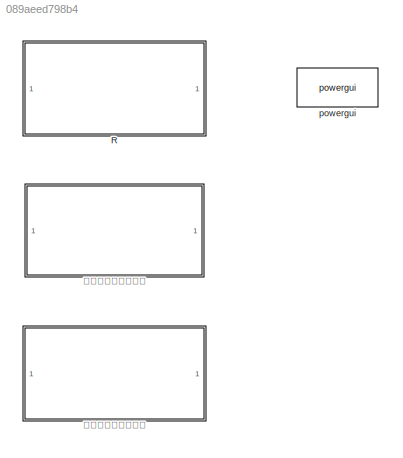
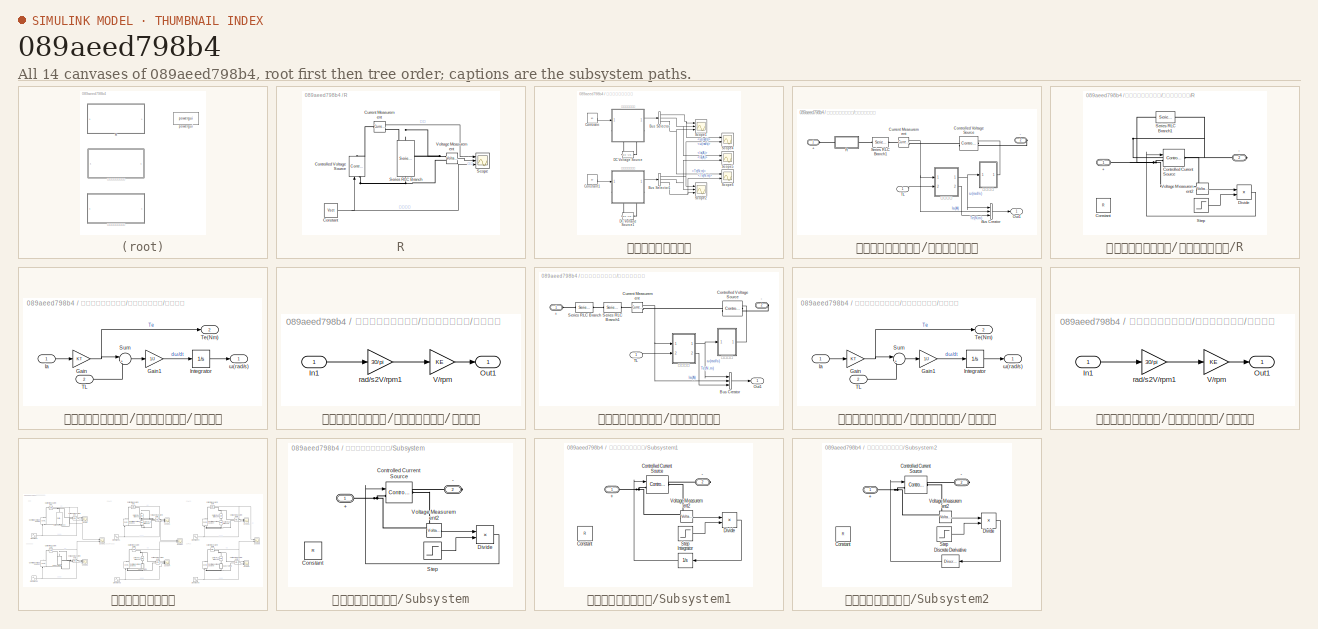
[diagram: thumbnail index - all 14 canvases of the model, root first then tree order]
MODEL slx_089aeed798b4
KIND model
CONFIG AbsTol = auto
CONFIG EnableMultiTasking = off
CONFIG FixedStep = auto
CONFIG MaxStep = 1e-6
CONFIG MinStep = auto
CONFIG RelTol = 1e-6
CONFIG SampleTimeConstraint = Unconstrained
CONFIG Solver = VariableStepAuto
CONFIG SolverName = VariableStepAuto
CONFIG StartTime = 0.0
CONFIG StopTime = 0.5
BLOCK [SubSystem] R
  Ports = []
  RequestExecContextInheritance = off
BLOCK [Constant] R/Constant
  Value = Vset
BLOCK [Reference] R/Controlled Voltage Source  REF=powerlib/Electrical
Sources/Controlled Voltage Source
  Ports = [1, 0, 0, 0, 0, 1, 1]
  SourceBlock = powerlib/Electrical\nSources/Controlled Voltage Source
  SourceProductBaseCode = PS
  SourceProductName = Simscape Power Systems
  SourceType = Controlled Voltage Source
BLOCK [Reference] R/Current Measurement  REF=powerlib/Measurements/Current Measurement
  Ports = [0, 1, 0, 0, 0, 1, 1]
  SourceBlock = powerlib/Measurements/Current Measurement
  SourceProductBaseCode = PS
  SourceProductName = Simscape Power Systems
  SourceType = Current Measurement
  UserDataPersistent = on
BLOCK [Scope] R/Scope
  Floating = off
  NumInputPorts = 3
  Ports = [3]
  ScopeSpecificationString = Simulink.scopes.TimeScopeBlockCfg('CurrentConfiguration', extmgr.ConfigurationSet(extmgr.Configuration('Core','General UI',true),extmgr.Configuration('Core','Source UI',true),extmgr.Configuration('Sources','WiredSimulink',true),extmgr.Configuration('Visuals','Time Domain',true,'SerializedDisplays',{struct('MinYLimReal','4.375','MaxYLimReal','10.625','YLabelReal','','MinYLimMag','4.375','MaxYLimMag...<+1347ch>
BLOCK [Reference] R/Series RLC Branch  REF=powerlib/Elements/Series RLC Branch
  Ports = [0, 0, 0, 0, 0, 1, 1]
  SourceBlock = powerlib/Elements/Series RLC Branch
  SourceProductBaseCode = PS
  SourceProductName = Simscape Power Systems
  SourceType = Series RLC Branch
BLOCK [Reference] R/Voltage Measurement  REF=powerlib/Measurements/Voltage Measurement
  Ports = [0, 1, 0, 0, 0, 2]
  SourceBlock = powerlib/Measurements/Voltage Measurement
  SourceProductBaseCode = PS
  SourceProductName = Simscape Power Systems
  SourceType = Voltage Measurement
  UserDataPersistent = on
BLOCK [Reference] powergui  REF=powerlib/powergui
  Ports = []
  Priority = 1
  SourceBlock = powerlib/powergui
  SourceProductBaseCode = PS
  SourceProductName = Simscape Power Systems
  SourceType = PSB option menu block
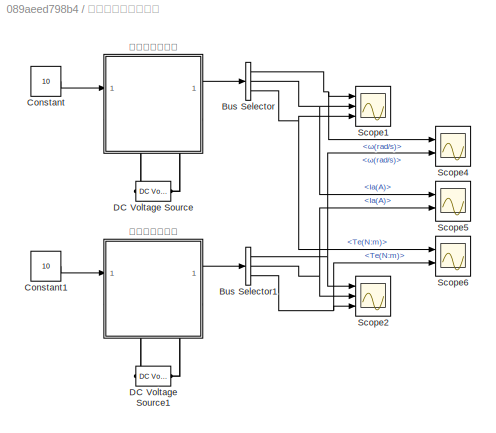
BLOCK [SubSystem] 变参数直流电机模型
  Ports = []
  RequestExecContextInheritance = off
BLOCK [BusSelector] 变参数直流电机模型/Bus Selector
  OutputAsBus = off
  OutputSignals = ω(rad/s),Ia(A),Te(N:m)
  Ports = [1, 3]
BLOCK [BusSelector] 变参数直流电机模型/Bus Selector1
  OutputAsBus = off
  OutputSignals = ω(rad/s),Ia(A),Te(N:m)
  Ports = [1, 3]
BLOCK [Constant] 变参数直流电机模型/Constant
  Value = 10
BLOCK [Constant] 变参数直流电机模型/Constant1
  Value = 10
BLOCK [Reference] 变参数直流电机模型/DC Voltage Source  REF=powerlib/Electrical
Sources/DC Voltage Source
  Ports = [0, 0, 0, 0, 0, 1, 1]
  SourceBlock = powerlib/Electrical\nSources/DC Voltage Source
  SourceProductBaseCode = PS
  SourceProductName = Simscape Power Systems
  SourceType = DC Voltage Source
BLOCK [Reference] 变参数直流电机模型/DC Voltage Source1  REF=powerlib/Electrical
Sources/DC Voltage Source
  Ports = [0, 0, 0, 0, 0, 1, 1]
  SourceBlock = powerlib/Electrical\nSources/DC Voltage Source
  SourceProductBaseCode = PS
  SourceProductName = Simscape Power Systems
  SourceType = DC Voltage Source
BLOCK [Scope] 变参数直流电机模型/Scope1
  Floating = off
  NumInputPorts = 3
  Ports = [3]
  ScopeSpecificationString = Simulink.scopes.TimeScopeBlockCfg('CurrentConfiguration', extmgr.ConfigurationSet(extmgr.Configuration('Core','General UI',true),extmgr.Configuration('Core','Source UI',true),extmgr.Configuration('Sources','WiredSimulink',true,'DataLoggingVariableName','ScopeData7'),extmgr.Configuration('Visuals','Time Domain',true,'SerializedDisplays',{struct('MinYLimReal','-0.08304','MaxYLimReal','0.74733','YLab...<+2814ch>
BLOCK [Scope] 变参数直流电机模型/Scope2
  Floating = off
  NumInputPorts = 3
  Ports = [3]
  ScopeSpecificationString = Simulink.scopes.TimeScopeBlockCfg('CurrentConfiguration', extmgr.ConfigurationSet(extmgr.Configuration('Core','General UI',true),extmgr.Configuration('Core','Source UI',true),extmgr.Configuration('Sources','WiredSimulink',true,'DataLoggingVariableName','ScopeData8'),extmgr.Configuration('Visuals','Time Domain',true,'SerializedDisplays',{struct('MinYLimReal','-0.08304','MaxYLimReal','0.74733','YLab...<+2814ch>
BLOCK [Scope] 变参数直流电机模型/Scope4
  Floating = off
  NumInputPorts = 2
  Ports = [2]
  ScopeSpecificationString = Simulink.scopes.TimeScopeBlockCfg('CurrentConfiguration', extmgr.ConfigurationSet(extmgr.Configuration('Core','General UI',true),extmgr.Configuration('Core','Source UI',true),extmgr.Configuration('Sources','WiredSimulink',true,'DataLoggingVariableName','ScopeData9'),extmgr.Configuration('Visuals','Time Domain',true,'SerializedDisplays',{struct('MinYLimReal','-0.07842','MaxYLimReal','0.70327','YLab...<+1503ch>
BLOCK [Scope] 变参数直流电机模型/Scope5
  Floating = off
  NumInputPorts = 2
  Ports = [2]
  ScopeSpecificationString = Simulink.scopes.TimeScopeBlockCfg('CurrentConfiguration', extmgr.ConfigurationSet(extmgr.Configuration('Core','General UI',true),extmgr.Configuration('Core','Source UI',true),extmgr.Configuration('Sources','WiredSimulink',true,'DataLoggingVariableName','ScopeData10'),extmgr.Configuration('Visuals','Time Domain',true,'SerializedDisplays',{struct('MinYLimReal','-0.79033','MaxYLimReal','13.42115','YL...<+1495ch>
BLOCK [Scope] 变参数直流电机模型/Scope6
  Floating = off
  NumInputPorts = 2
  Ports = [2]
  ScopeSpecificationString = Simulink.scopes.TimeScopeBlockCfg('CurrentConfiguration', extmgr.ConfigurationSet(extmgr.Configuration('Core','General UI',true),extmgr.Configuration('Core','Source UI',true),extmgr.Configuration('Sources','WiredSimulink',true,'DataLoggingVariableName','ScopeData11'),extmgr.Configuration('Visuals','Time Domain',true,'SerializedDisplays',{struct('MinYLimReal','-12.89768','MaxYLimReal','116.09974','...<+1512ch>
BLOCK [SubSystem] 变参数直流电机模型/变参数直流电机
  Ports = [1, 1, 0, 0, 0, 1, 1]
  RequestExecContextInheritance = off
BLOCK [PMIOPort] 变参数直流电机模型/变参数直流电机/+
  Side = Left
BLOCK [PMIOPort] 变参数直流电机模型/变参数直流电机/-
  Port = 2
  Side = Right
BLOCK [BusCreator] 变参数直流电机模型/变参数直流电机/Bus Creator
  DisplayOption = bar
  InheritFromInputs = on
  Inputs = 3
  Ports = [3, 1]
BLOCK [Reference] 变参数直流电机模型/变参数直流电机/Controlled Voltage Source  REF=powerlib/Electrical
Sources/Controlled Voltage Source
  Ports = [1, 0, 0, 0, 0, 1, 1]
  SourceBlock = powerlib/Electrical\nSources/Controlled Voltage Source
  SourceProductBaseCode = PS
  SourceProductName = Simscape Power Systems
  SourceType = Controlled Voltage Source
BLOCK [Reference] 变参数直流电机模型/变参数直流电机/Current Measurement  REF=powerlib/Measurements/Current Measurement
  Ports = [0, 1, 0, 0, 0, 1, 1]
  SourceBlock = powerlib/Measurements/Current Measurement
  SourceProductBaseCode = PS
  SourceProductName = Simscape Power Systems
  SourceType = Current Measurement
  UserDataPersistent = on
BLOCK [Outport] 变参数直流电机模型/变参数直流电机/Out1
  IconDisplay = Port number
BLOCK [SubSystem] 变参数直流电机模型/变参数直流电机/R
  Ports = [0, 0, 0, 0, 0, 1, 1]
  RequestExecContextInheritance = off
BLOCK [PMIOPort] 变参数直流电机模型/变参数直流电机/R/+
  Side = Left
BLOCK [PMIOPort] 变参数直流电机模型/变参数直流电机/R/-
  Port = 2
  Side = Right
BLOCK [Constant] 变参数直流电机模型/变参数直流电机/R/Constant
  Value = R
BLOCK [Reference] 变参数直流电机模型/变参数直流电机/R/Controlled Current Source  REF=powerlib/Electrical
Sources/Controlled Current Source
  Ports = [1, 0, 0, 0, 0, 1, 1]
  SourceBlock = powerlib/Electrical\nSources/Controlled Current Source
  SourceProductBaseCode = PS
  SourceProductName = Simscape Power Systems
  SourceType = Controlled Current Source
BLOCK [Product] 变参数直流电机模型/变参数直流电机/R/Divide
  InputSameDT = off
  Inputs = */
  OutDataTypeStr = Inherit: Inherit via internal rule
  Ports = [2, 1]
  RndMeth = Floor
  SaturateOnIntegerOverflow = off
BLOCK [Reference] 变参数直流电机模型/变参数直流电机/R/Series RLC Branch1  REF=powerlib/Elements/Series RLC Branch
  Ports = [0, 0, 0, 0, 0, 1, 1]
  SourceBlock = powerlib/Elements/Series RLC Branch
  SourceProductBaseCode = PS
  SourceProductName = Simscape Power Systems
  SourceType = Series RLC Branch
BLOCK [Step] 变参数直流电机模型/变参数直流电机/R/Step
  After = R*2
  Before = R
  SampleTime = 0
  Time = 0.2
BLOCK [Reference] 变参数直流电机模型/变参数直流电机/R/Voltage Measurement2  REF=powerlib/Measurements/Voltage Measurement
  Ports = [0, 1, 0, 0, 0, 2]
  SourceBlock = powerlib/Measurements/Voltage Measurement
  SourceProductBaseCode = PS
  SourceProductName = Simscape Power Systems
  SourceType = Voltage Measurement
  UserDataPersistent = on
BLOCK [Reference] 变参数直流电机模型/变参数直流电机/Series RLC Branch1  REF=powerlib/Elements/Series RLC Branch
  Ports = [0, 0, 0, 0, 0, 1, 1]
  SourceBlock = powerlib/Elements/Series RLC Branch
  SourceProductBaseCode = PS
  SourceProductName = Simscape Power Systems
  SourceType = Series RLC Branch
BLOCK [Inport] 变参数直流电机模型/变参数直流电机/TL
  IconDisplay = Port number
BLOCK [SubSystem] 变参数直流电机模型/变参数直流电机/机械方程
  Ports = [2, 2]
  RequestExecContextInheritance = off
BLOCK [Gain] 变参数直流电机模型/变参数直流电机/机械方程/Gain
  Gain = KT
  OutDataTypeStr = Inherit: Inherit via internal rule
  ParamDataTypeStr = Inherit: Inherit via internal rule
  SaturateOnIntegerOverflow = off
BLOCK [Gain] 变参数直流电机模型/变参数直流电机/机械方程/Gain1
  Gain = 1/J
  OutDataTypeStr = Inherit: Inherit via internal rule
  ParamDataTypeStr = Inherit: Inherit via internal rule
  SaturateOnIntegerOverflow = off
BLOCK [Inport] 变参数直流电机模型/变参数直流电机/机械方程/Ia
  IconDisplay = Port number
BLOCK [Integrator] 变参数直流电机模型/变参数直流电机/机械方程/Integrator
  Ports = [1, 1]
BLOCK [Sum] 变参数直流电机模型/变参数直流电机/机械方程/Sum
  IconShape = round
  InputSameDT = off
  Inputs = |+-
  OutDataTypeStr = Inherit: Inherit via internal rule
  Ports = [2, 1]
  SaturateOnIntegerOverflow = off
BLOCK [Inport] 变参数直流电机模型/变参数直流电机/机械方程/TL
  IconDisplay = Port number
  Port = 2
BLOCK [Outport] 变参数直流电机模型/变参数直流电机/机械方程/Te(Nm)
  IconDisplay = Port number
  Port = 2
BLOCK [Outport] 变参数直流电机模型/变参数直流电机/机械方程/ω(rad//s)
  IconDisplay = Port number
BLOCK [SubSystem] 变参数直流电机模型/变参数直流电机/电气方程
  Ports = [1, 1]
  RequestExecContextInheritance = off
BLOCK [Inport] 变参数直流电机模型/变参数直流电机/电气方程/In1
  IconDisplay = Port number
BLOCK [Outport] 变参数直流电机模型/变参数直流电机/电气方程/Out1
  IconDisplay = Port number
BLOCK [Gain] 变参数直流电机模型/变参数直流电机/电气方程/V//rpm
  Gain = KE
  OutDataTypeStr = Inherit: Inherit via internal rule
  ParamDataTypeStr = Inherit: Inherit via internal rule
  SaturateOnIntegerOverflow = off
BLOCK [Gain] 变参数直流电机模型/变参数直流电机/电气方程/rad//s2V//rpm1
  Gain = 30/pi
  OutDataTypeStr = Inherit: Inherit via internal rule
  ParamDataTypeStr = Inherit: Inherit via internal rule
  SaturateOnIntegerOverflow = off
BLOCK [SubSystem] 变参数直流电机模型/定参数直流电机
  Ports = [1, 1, 0, 0, 0, 1, 1]
  RequestExecContextInheritance = off
BLOCK [PMIOPort] 变参数直流电机模型/定参数直流电机/+
  Side = Left
BLOCK [PMIOPort] 变参数直流电机模型/定参数直流电机/-
  Port = 2
  Side = Right
BLOCK [BusCreator] 变参数直流电机模型/定参数直流电机/Bus Creator
  DisplayOption = bar
  InheritFromInputs = on
  Inputs = 3
  Ports = [3, 1]
BLOCK [Reference] 变参数直流电机模型/定参数直流电机/Controlled Voltage Source  REF=powerlib/Electrical
Sources/Controlled Voltage Source
  Ports = [1, 0, 0, 0, 0, 1, 1]
  SourceBlock = powerlib/Electrical\nSources/Controlled Voltage Source
  SourceProductBaseCode = PS
  SourceProductName = Simscape Power Systems
  SourceType = Controlled Voltage Source
BLOCK [Reference] 变参数直流电机模型/定参数直流电机/Current Measurement  REF=powerlib/Measurements/Current Measurement
  Ports = [0, 1, 0, 0, 0, 1, 1]
  SourceBlock = powerlib/Measurements/Current Measurement
  SourceProductBaseCode = PS
  SourceProductName = Simscape Power Systems
  SourceType = Current Measurement
  UserDataPersistent = on
BLOCK [Outport] 变参数直流电机模型/定参数直流电机/Out1
  IconDisplay = Port number
BLOCK [Reference] 变参数直流电机模型/定参数直流电机/Series RLC Branch  REF=powerlib/Elements/Series RLC Branch
  Ports = [0, 0, 0, 0, 0, 1, 1]
  SourceBlock = powerlib/Elements/Series RLC Branch
  SourceProductBaseCode = PS
  SourceProductName = Simscape Power Systems
  SourceType = Series RLC Branch
BLOCK [Reference] 变参数直流电机模型/定参数直流电机/Series RLC Branch1  REF=powerlib/Elements/Series RLC Branch
  Ports = [0, 0, 0, 0, 0, 1, 1]
  SourceBlock = powerlib/Elements/Series RLC Branch
  SourceProductBaseCode = PS
  SourceProductName = Simscape Power Systems
  SourceType = Series RLC Branch
BLOCK [Inport] 变参数直流电机模型/定参数直流电机/TL
  IconDisplay = Port number
BLOCK [SubSystem] 变参数直流电机模型/定参数直流电机/机械方程
  Ports = [2, 2]
  RequestExecContextInheritance = off
BLOCK [Gain] 变参数直流电机模型/定参数直流电机/机械方程/Gain
  Gain = KT
  OutDataTypeStr = Inherit: Inherit via internal rule
  ParamDataTypeStr = Inherit: Inherit via internal rule
  SaturateOnIntegerOverflow = off
BLOCK [Gain] 变参数直流电机模型/定参数直流电机/机械方程/Gain1
  Gain = 1/J
  OutDataTypeStr = Inherit: Inherit via internal rule
  ParamDataTypeStr = Inherit: Inherit via internal rule
  SaturateOnIntegerOverflow = off
BLOCK [Inport] 变参数直流电机模型/定参数直流电机/机械方程/Ia
  IconDisplay = Port number
BLOCK [Integrator] 变参数直流电机模型/定参数直流电机/机械方程/Integrator
  Ports = [1, 1]
BLOCK [Sum] 变参数直流电机模型/定参数直流电机/机械方程/Sum
  IconShape = round
  InputSameDT = off
  Inputs = |+-
  OutDataTypeStr = Inherit: Inherit via internal rule
  Ports = [2, 1]
  SaturateOnIntegerOverflow = off
BLOCK [Inport] 变参数直流电机模型/定参数直流电机/机械方程/TL
  IconDisplay = Port number
  Port = 2
BLOCK [Outport] 变参数直流电机模型/定参数直流电机/机械方程/Te(Nm)
  IconDisplay = Port number
  Port = 2
BLOCK [Outport] 变参数直流电机模型/定参数直流电机/机械方程/ω(rad//s)
  IconDisplay = Port number
BLOCK [SubSystem] 变参数直流电机模型/定参数直流电机/电气方程
  Ports = [1, 1]
  RequestExecContextInheritance = off
BLOCK [Inport] 变参数直流电机模型/定参数直流电机/电气方程/In1
  IconDisplay = Port number
BLOCK [Outport] 变参数直流电机模型/定参数直流电机/电气方程/Out1
  IconDisplay = Port number
BLOCK [Gain] 变参数直流电机模型/定参数直流电机/电气方程/V//rpm
  Gain = KE
  OutDataTypeStr = Inherit: Inherit via internal rule
  ParamDataTypeStr = Inherit: Inherit via internal rule
  SaturateOnIntegerOverflow = off
BLOCK [Gain] 变参数直流电机模型/定参数直流电机/电气方程/rad//s2V//rpm1
  Gain = 30/pi
  OutDataTypeStr = Inherit: Inherit via internal rule
  ParamDataTypeStr = Inherit: Inherit via internal rule
  SaturateOnIntegerOverflow = off
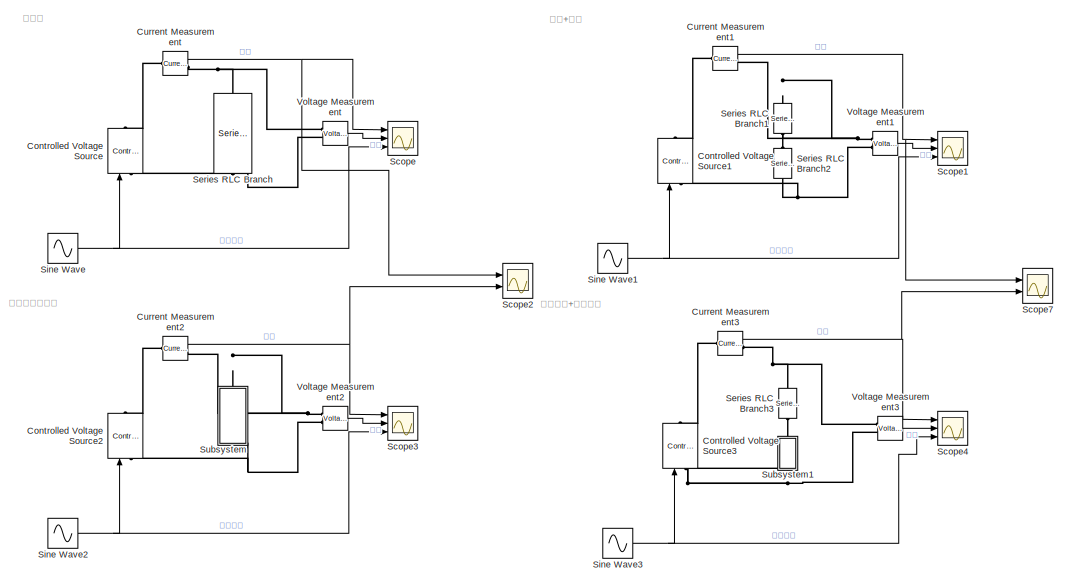
[diagram: 可变参电阻电感电容 - part 1/2, center side, full height]
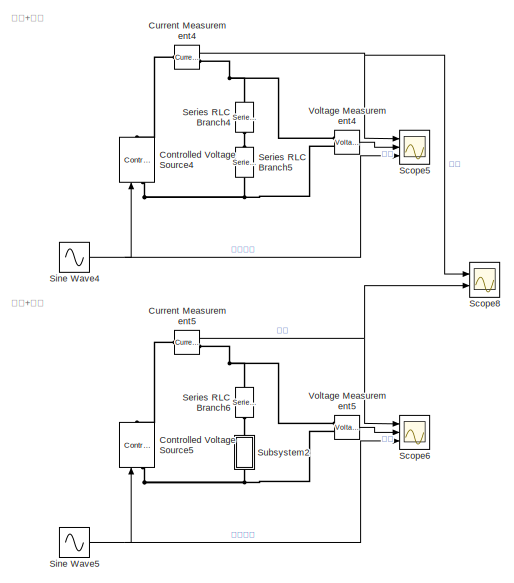
[diagram: 可变参电阻电感电容 - part 2/2, right side, full height]
BLOCK [SubSystem] 可变参电阻电感电容
  Ports = []
  RequestExecContextInheritance = off
BLOCK [Reference] 可变参电阻电感电容/Controlled Voltage Source  REF=powerlib/Electrical
Sources/Controlled Voltage Source
  Ports = [1, 0, 0, 0, 0, 1, 1]
  SourceBlock = powerlib/Electrical\nSources/Controlled Voltage Source
  SourceProductBaseCode = PS
  SourceProductName = Simscape Power Systems
  SourceType = Controlled Voltage Source
BLOCK [Reference] 可变参电阻电感电容/Controlled Voltage Source1  REF=powerlib/Electrical
Sources/Controlled Voltage Source
  Ports = [1, 0, 0, 0, 0, 1, 1]
  SourceBlock = powerlib/Electrical\nSources/Controlled Voltage Source
  SourceProductBaseCode = PS
  SourceProductName = Simscape Power Systems
  SourceType = Controlled Voltage Source
BLOCK [Reference] 可变参电阻电感电容/Controlled Voltage Source2  REF=powerlib/Electrical
Sources/Controlled Voltage Source
  Ports = [1, 0, 0, 0, 0, 1, 1]
  SourceBlock = powerlib/Electrical\nSources/Controlled Voltage Source
  SourceProductBaseCode = PS
  SourceProductName = Simscape Power Systems
  SourceType = Controlled Voltage Source
BLOCK [Reference] 可变参电阻电感电容/Controlled Voltage Source3  REF=powerlib/Electrical
Sources/Controlled Voltage Source
  Ports = [1, 0, 0, 0, 0, 1, 1]
  SourceBlock = powerlib/Electrical\nSources/Controlled Voltage Source
  SourceProductBaseCode = PS
  SourceProductName = Simscape Power Systems
  SourceType = Controlled Voltage Source
BLOCK [Reference] 可变参电阻电感电容/Controlled Voltage Source4  REF=powerlib/Electrical
Sources/Controlled Voltage Source
  Ports = [1, 0, 0, 0, 0, 1, 1]
  SourceBlock = powerlib/Electrical\nSources/Controlled Voltage Source
  SourceProductBaseCode = PS
  SourceProductName = Simscape Power Systems
  SourceType = Controlled Voltage Source
BLOCK [Reference] 可变参电阻电感电容/Controlled Voltage Source5  REF=powerlib/Electrical
Sources/Controlled Voltage Source
  Ports = [1, 0, 0, 0, 0, 1, 1]
  SourceBlock = powerlib/Electrical\nSources/Controlled Voltage Source
  SourceProductBaseCode = PS
  SourceProductName = Simscape Power Systems
  SourceType = Controlled Voltage Source
BLOCK [Reference] 可变参电阻电感电容/Current Measurement  REF=powerlib/Measurements/Current Measurement
  Ports = [0, 1, 0, 0, 0, 1, 1]
  SourceBlock = powerlib/Measurements/Current Measurement
  SourceProductBaseCode = PS
  SourceProductName = Simscape Power Systems
  SourceType = Current Measurement
  UserDataPersistent = on
BLOCK [Reference] 可变参电阻电感电容/Current Measurement1  REF=powerlib/Measurements/Current Measurement
  Ports = [0, 1, 0, 0, 0, 1, 1]
  SourceBlock = powerlib/Measurements/Current Measurement
  SourceProductBaseCode = PS
  SourceProductName = Simscape Power Systems
  SourceType = Current Measurement
  UserDataPersistent = on
BLOCK [Reference] 可变参电阻电感电容/Current Measurement2  REF=powerlib/Measurements/Current Measurement
  Ports = [0, 1, 0, 0, 0, 1, 1]
  SourceBlock = powerlib/Measurements/Current Measurement
  SourceProductBaseCode = PS
  SourceProductName = Simscape Power Systems
  SourceType = Current Measurement
  UserDataPersistent = on
BLOCK [Reference] 可变参电阻电感电容/Current Measurement3  REF=powerlib/Measurements/Current Measurement
  Ports = [0, 1, 0, 0, 0, 1, 1]
  SourceBlock = powerlib/Measurements/Current Measurement
  SourceProductBaseCode = PS
  SourceProductName = Simscape Power Systems
  SourceType = Current Measurement
  UserDataPersistent = on
BLOCK [Reference] 可变参电阻电感电容/Current Measurement4  REF=powerlib/Measurements/Current Measurement
  Ports = [0, 1, 0, 0, 0, 1, 1]
  SourceBlock = powerlib/Measurements/Current Measurement
  SourceProductBaseCode = PS
  SourceProductName = Simscape Power Systems
  SourceType = Current Measurement
  UserDataPersistent = on
BLOCK [Reference] 可变参电阻电感电容/Current Measurement5  REF=powerlib/Measurements/Current Measurement
  Ports = [0, 1, 0, 0, 0, 1, 1]
  SourceBlock = powerlib/Measurements/Current Measurement
  SourceProductBaseCode = PS
  SourceProductName = Simscape Power Systems
  SourceType = Current Measurement
  UserDataPersistent = on
BLOCK [Scope] 可变参电阻电感电容/Scope
  Floating = off
  NumInputPorts = 3
  Ports = [3]
  ScopeSpecificationString = Simulink.scopes.TimeScopeBlockCfg('CurrentConfiguration', extmgr.ConfigurationSet(extmgr.Configuration('Core','General UI',true),extmgr.Configuration('Core','Source UI',true),extmgr.Configuration('Sources','WiredSimulink',true),extmgr.Configuration('Visuals','Time Domain',true,'SerializedDisplays',{struct('MinYLimReal','-12.5','MaxYLimReal','12.5','YLabelReal','','MinYLimMag','0.00000','MaxYLimMag...<+1343ch>
BLOCK [Scope] 可变参电阻电感电容/Scope1
  Floating = off
  NumInputPorts = 3
  Ports = [3]
  ScopeSpecificationString = Simulink.scopes.TimeScopeBlockCfg('CurrentConfiguration', extmgr.ConfigurationSet(extmgr.Configuration('Core','General UI',true),extmgr.Configuration('Core','Source UI',true),extmgr.Configuration('Sources','WiredSimulink',true,'DataLoggingVariableName','ScopeData1'),extmgr.Configuration('Visuals','Time Domain',true,'SerializedDisplays',{struct('MinYLimReal','-12.5','MaxYLimReal','12.5','YLabelReal...<+1382ch>
BLOCK [Scope] 可变参电阻电感电容/Scope2
  Floating = off
  NumInputPorts = 2
  Ports = [2]
  ScopeSpecificationString = Simulink.scopes.TimeScopeBlockCfg('CurrentConfiguration', extmgr.ConfigurationSet(extmgr.Configuration('Core','General UI',true),extmgr.Configuration('Core','Source UI',true),extmgr.Configuration('Sources','WiredSimulink',true,'DataLoggingVariableName','ScopeData2'),extmgr.Configuration('Visuals','Time Domain',true,'SerializedDisplays',{struct('MinYLimReal','-2.5','MaxYLimReal','2.5','YLabelReal',...<+1394ch>
BLOCK [Scope] 可变参电阻电感电容/Scope3
  Floating = off
  NumInputPorts = 3
  Ports = [3]
  ScopeSpecificationString = Simulink.scopes.TimeScopeBlockCfg('CurrentConfiguration', extmgr.ConfigurationSet(extmgr.Configuration('Core','General UI',true),extmgr.Configuration('Core','Source UI',true),extmgr.Configuration('Sources','WiredSimulink',true,'DataLoggingVariableName','ScopeData3'),extmgr.Configuration('Visuals','Time Domain',true,'SerializedDisplays',{struct('MinYLimReal','-12.5','MaxYLimReal','12.5','YLabelReal...<+1382ch>
BLOCK [Scope] 可变参电阻电感电容/Scope4
  Floating = off
  NumInputPorts = 3
  Ports = [3]
  ScopeSpecificationString = Simulink.scopes.TimeScopeBlockCfg('CurrentConfiguration', extmgr.ConfigurationSet(extmgr.Configuration('Core','General UI',true),extmgr.Configuration('Core','Source UI',true),extmgr.Configuration('Sources','WiredSimulink',true,'DataLoggingVariableName','ScopeData1'),extmgr.Configuration('Visuals','Time Domain',true,'SerializedDisplays',{struct('MinYLimReal','-12.5','MaxYLimReal','12.5','YLabelReal...<+1382ch>
BLOCK [Scope] 可变参电阻电感电容/Scope5
  Floating = off
  NumInputPorts = 3
  Ports = [3]
  ScopeSpecificationString = Simulink.scopes.TimeScopeBlockCfg('CurrentConfiguration', extmgr.ConfigurationSet(extmgr.Configuration('Core','General UI',true),extmgr.Configuration('Core','Source UI',true),extmgr.Configuration('Sources','WiredSimulink',true,'DataLoggingVariableName','ScopeData2'),extmgr.Configuration('Visuals','Time Domain',true,'SerializedDisplays',{struct('MinYLimReal','-12.5','MaxYLimReal','12.5','YLabelReal...<+1382ch>
BLOCK [Scope] 可变参电阻电感电容/Scope6
  Floating = off
  NumInputPorts = 3
  Ports = [3]
  ScopeSpecificationString = Simulink.scopes.TimeScopeBlockCfg('CurrentConfiguration', extmgr.ConfigurationSet(extmgr.Configuration('Core','General UI',true),extmgr.Configuration('Core','Source UI',true),extmgr.Configuration('Sources','WiredSimulink',true,'DataLoggingVariableName','ScopeData3'),extmgr.Configuration('Visuals','Time Domain',true,'SerializedDisplays',{struct('MinYLimReal','-12.5','MaxYLimReal','12.5','YLabelReal...<+1382ch>
BLOCK [Scope] 可变参电阻电感电容/Scope7
  Floating = off
  NumInputPorts = 2
  Ports = [2]
  ScopeSpecificationString = Simulink.scopes.TimeScopeBlockCfg('CurrentConfiguration', extmgr.ConfigurationSet(extmgr.Configuration('Core','General UI',true),extmgr.Configuration('Core','Source UI',true),extmgr.Configuration('Sources','WiredSimulink',true,'DataLoggingVariableName','ScopeData4'),extmgr.Configuration('Visuals','Time Domain',true,'SerializedDisplays',{struct('MinYLimReal','-2.12071','MaxYLimReal','2.15171','YLab...<+1418ch>
BLOCK [Scope] 可变参电阻电感电容/Scope8
  Floating = off
  NumInputPorts = 2
  Ports = [2]
  ScopeSpecificationString = Simulink.scopes.TimeScopeBlockCfg('CurrentConfiguration', extmgr.ConfigurationSet(extmgr.Configuration('Core','General UI',true),extmgr.Configuration('Core','Source UI',true),extmgr.Configuration('Sources','WiredSimulink',true,'DataLoggingVariableName','ScopeData5'),extmgr.Configuration('Visuals','Time Domain',true,'SerializedDisplays',{struct('MinYLimReal','-2.41677','MaxYLimReal','2.38597','YLab...<+1418ch>
BLOCK [Reference] 可变参电阻电感电容/Series RLC Branch  REF=powerlib/Elements/Series RLC Branch
  Ports = [0, 0, 0, 0, 0, 1, 1]
  SourceBlock = powerlib/Elements/Series RLC Branch
  SourceProductBaseCode = PS
  SourceProductName = Simscape Power Systems
  SourceType = Series RLC Branch
BLOCK [Reference] 可变参电阻电感电容/Series RLC Branch1  REF=powerlib/Elements/Series RLC Branch
  Ports = [0, 0, 0, 0, 0, 1, 1]
  SourceBlock = powerlib/Elements/Series RLC Branch
  SourceProductBaseCode = PS
  SourceProductName = Simscape Power Systems
  SourceType = Series RLC Branch
BLOCK [Reference] 可变参电阻电感电容/Series RLC Branch2  REF=powerlib/Elements/Series RLC Branch
  Ports = [0, 0, 0, 0, 0, 1, 1]
  SourceBlock = powerlib/Elements/Series RLC Branch
  SourceProductBaseCode = PS
  SourceProductName = Simscape Power Systems
  SourceType = Series RLC Branch
BLOCK [Reference] 可变参电阻电感电容/Series RLC Branch3  REF=powerlib/Elements/Series RLC Branch
  Ports = [0, 0, 0, 0, 0, 1, 1]
  SourceBlock = powerlib/Elements/Series RLC Branch
  SourceProductBaseCode = PS
  SourceProductName = Simscape Power Systems
  SourceType = Series RLC Branch
BLOCK [Reference] 可变参电阻电感电容/Series RLC Branch4  REF=powerlib/Elements/Series RLC Branch
  Ports = [0, 0, 0, 0, 0, 1, 1]
  SourceBlock = powerlib/Elements/Series RLC Branch
  SourceProductBaseCode = PS
  SourceProductName = Simscape Power Systems
  SourceType = Series RLC Branch
BLOCK [Reference] 可变参电阻电感电容/Series RLC Branch5  REF=powerlib/Elements/Series RLC Branch
  Ports = [0, 0, 0, 0, 0, 1, 1]
  SourceBlock = powerlib/Elements/Series RLC Branch
  SourceProductBaseCode = PS
  SourceProductName = Simscape Power Systems
  SourceType = Series RLC Branch
BLOCK [Reference] 可变参电阻电感电容/Series RLC Branch6  REF=powerlib/Elements/Series RLC Branch
  Ports = [0, 0, 0, 0, 0, 1, 1]
  SourceBlock = powerlib/Elements/Series RLC Branch
  SourceProductBaseCode = PS
  SourceProductName = Simscape Power Systems
  SourceType = Series RLC Branch
BLOCK [Sin] 可变参电阻电感电容/Sine Wave
  Amplitude = Vset
  Frequency = 50*2*pi
  Ports = [0, 1]
  SampleTime = 0
BLOCK [Sin] 可变参电阻电感电容/Sine Wave1
  Amplitude = Vset
  Frequency = 50*2*pi
  Ports = [0, 1]
  SampleTime = 0
BLOCK [Sin] 可变参电阻电感电容/Sine Wave2
  Amplitude = Vset
  Frequency = 50*2*pi
  Ports = [0, 1]
  SampleTime = 0
BLOCK [Sin] 可变参电阻电感电容/Sine Wave3
  Amplitude = Vset
  Frequency = 50*2*pi
  Ports = [0, 1]
  SampleTime = 0
BLOCK [Sin] 可变参电阻电感电容/Sine Wave4
  Amplitude = Vset
  Frequency = 50*2*pi
  Ports = [0, 1]
  SampleTime = 0
BLOCK [Sin] 可变参电阻电感电容/Sine Wave5
  Amplitude = Vset
  Frequency = 50*2*pi
  Ports = [0, 1]
  SampleTime = 0
BLOCK [SubSystem] 可变参电阻电感电容/Subsystem
  Ports = [0, 0, 0, 0, 0, 1, 1]
  RequestExecContextInheritance = off
BLOCK [PMIOPort] 可变参电阻电感电容/Subsystem/+
  Side = Left
BLOCK [PMIOPort] 可变参电阻电感电容/Subsystem/-
  Port = 2
  Side = Right
BLOCK [Constant] 可变参电阻电感电容/Subsystem/Constant
  Value = R
BLOCK [Reference] 可变参电阻电感电容/Subsystem/Controlled Current Source  REF=powerlib/Electrical
Sources/Controlled Current Source
  Ports = [1, 0, 0, 0, 0, 1, 1]
  SourceBlock = powerlib/Electrical\nSources/Controlled Current Source
  SourceProductBaseCode = PS
  SourceProductName = Simscape Power Systems
  SourceType = Controlled Current Source
BLOCK [Product] 可变参电阻电感电容/Subsystem/Divide
  InputSameDT = off
  Inputs = */
  OutDataTypeStr = Inherit: Inherit via internal rule
  Ports = [2, 1]
  RndMeth = Floor
  SaturateOnIntegerOverflow = off
BLOCK [Step] 可变参电阻电感电容/Subsystem/Step
  After = R*2
  Before = R
  SampleTime = 0
  Time = 0.1
BLOCK [Reference] 可变参电阻电感电容/Subsystem/Voltage Measurement2  REF=powerlib/Measurements/Voltage Measurement
  Ports = [0, 1, 0, 0, 0, 2]
  SourceBlock = powerlib/Measurements/Voltage Measurement
  SourceProductBaseCode = PS
  SourceProductName = Simscape Power Systems
  SourceType = Voltage Measurement
  UserDataPersistent = on
BLOCK [SubSystem] 可变参电阻电感电容/Subsystem1
  Ports = [0, 0, 0, 0, 0, 1, 1]
  RequestExecContextInheritance = off
BLOCK [PMIOPort] 可变参电阻电感电容/Subsystem1/+
  Side = Left
BLOCK [PMIOPort] 可变参电阻电感电容/Subsystem1/-
  Port = 2
  Side = Right
BLOCK [Constant] 可变参电阻电感电容/Subsystem1/Constant
  Value = R
BLOCK [Reference] 可变参电阻电感电容/Subsystem1/Controlled Current Source  REF=powerlib/Electrical
Sources/Controlled Current Source
  Ports = [1, 0, 0, 0, 0, 1, 1]
  SourceBlock = powerlib/Electrical\nSources/Controlled Current Source
  SourceProductBaseCode = PS
  SourceProductName = Simscape Power Systems
  SourceType = Controlled Current Source
BLOCK [Product] 可变参电阻电感电容/Subsystem1/Divide
  InputSameDT = off
  Inputs = */
  OutDataTypeStr = Inherit: Inherit via internal rule
  Ports = [2, 1]
  RndMeth = Floor
  SaturateOnIntegerOverflow = off
BLOCK [Integrator] 可变参电阻电感电容/Subsystem1/Integrator
  Ports = [1, 1]
BLOCK [Step] 可变参电阻电感电容/Subsystem1/Step
  After = L*2
  Before = L
  SampleTime = 0
  Time = 0.1
BLOCK [Reference] 可变参电阻电感电容/Subsystem1/Voltage Measurement2  REF=powerlib/Measurements/Voltage Measurement
  Ports = [0, 1, 0, 0, 0, 2]
  SourceBlock = powerlib/Measurements/Voltage Measurement
  SourceProductBaseCode = PS
  SourceProductName = Simscape Power Systems
  SourceType = Voltage Measurement
  UserDataPersistent = on
BLOCK [SubSystem] 可变参电阻电感电容/Subsystem2
  Ports = [0, 0, 0, 0, 0, 1, 1]
  RequestExecContextInheritance = off
BLOCK [PMIOPort] 可变参电阻电感电容/Subsystem2/+
  Side = Left
BLOCK [PMIOPort] 可变参电阻电感电容/Subsystem2/-
  Port = 2
  Side = Right
BLOCK [Constant] 可变参电阻电感电容/Subsystem2/Constant
  Value = R
BLOCK [Reference] 可变参电阻电感电容/Subsystem2/Controlled Current Source  REF=powerlib/Electrical
Sources/Controlled Current Source
  Ports = [1, 0, 0, 0, 0, 1, 1]
  SourceBlock = powerlib/Electrical\nSources/Controlled Current Source
  SourceProductBaseCode = PS
  SourceProductName = Simscape Power Systems
  SourceType = Controlled Current Source
BLOCK [Reference] 可变参电阻电感电容/Subsystem2/Discrete Derivative  REF=simulink/Discrete/Discrete Derivative
  Ports = [1, 1]
  SourceBlock = simulink/Discrete/Discrete Derivative
  SourceProductBaseCode = SL
  SourceProductName = Simulink
  SourceType = Discrete Derivative
BLOCK [Product] 可变参电阻电感电容/Subsystem2/Divide
  InputSameDT = off
  Inputs = **
  OutDataTypeStr = Inherit: Inherit via internal rule
  Ports = [2, 1]
  RndMeth = Floor
  SaturateOnIntegerOverflow = off
BLOCK [Step] 可变参电阻电感电容/Subsystem2/Step
  After = C*2
  Before = C
  SampleTime = 0
  Time = 0.1
BLOCK [Reference] 可变参电阻电感电容/Subsystem2/Voltage Measurement2  REF=powerlib/Measurements/Voltage Measurement
  Ports = [0, 1, 0, 0, 0, 2]
  SourceBlock = powerlib/Measurements/Voltage Measurement
  SourceProductBaseCode = PS
  SourceProductName = Simscape Power Systems
  SourceType = Voltage Measurement
  UserDataPersistent = on
BLOCK [Reference] 可变参电阻电感电容/Voltage Measurement  REF=powerlib/Measurements/Voltage Measurement
  Ports = [0, 1, 0, 0, 0, 2]
  SourceBlock = powerlib/Measurements/Voltage Measurement
  SourceProductBaseCode = PS
  SourceProductName = Simscape Power Systems
  SourceType = Voltage Measurement
  UserDataPersistent = on
BLOCK [Reference] 可变参电阻电感电容/Voltage Measurement1  REF=powerlib/Measurements/Voltage Measurement
  Ports = [0, 1, 0, 0, 0, 2]
  SourceBlock = powerlib/Measurements/Voltage Measurement
  SourceProductBaseCode = PS
  SourceProductName = Simscape Power Systems
  SourceType = Voltage Measurement
  UserDataPersistent = on
BLOCK [Reference] 可变参电阻电感电容/Voltage Measurement2  REF=powerlib/Measurements/Voltage Measurement
  Ports = [0, 1, 0, 0, 0, 2]
  SourceBlock = powerlib/Measurements/Voltage Measurement
  SourceProductBaseCode = PS
  SourceProductName = Simscape Power Systems
  SourceType = Voltage Measurement
  UserDataPersistent = on
BLOCK [Reference] 可变参电阻电感电容/Voltage Measurement3  REF=powerlib/Measurements/Voltage Measurement
  Ports = [0, 1, 0, 0, 0, 2]
  SourceBlock = powerlib/Measurements/Voltage Measurement
  SourceProductBaseCode = PS
  SourceProductName = Simscape Power Systems
  SourceType = Voltage Measurement
  UserDataPersistent = on
BLOCK [Reference] 可变参电阻电感电容/Voltage Measurement4  REF=powerlib/Measurements/Voltage Measurement
  Ports = [0, 1, 0, 0, 0, 2]
  SourceBlock = powerlib/Measurements/Voltage Measurement
  SourceProductBaseCode = PS
  SourceProductName = Simscape Power Systems
  SourceType = Voltage Measurement
  UserDataPersistent = on
BLOCK [Reference] 可变参电阻电感电容/Voltage Measurement5  REF=powerlib/Measurements/Voltage Measurement
  Ports = [0, 1, 0, 0, 0, 2]
  SourceBlock = powerlib/Measurements/Voltage Measurement
  SourceProductBaseCode = PS
  SourceProductName = Simscape Power Systems
  SourceType = Voltage Measurement
  UserDataPersistent = on
ANNOTATION 可变参电阻电感电容: 可变电阻+可变电感
ANNOTATION 可变参电阻电感电容: 电阻+电感
ANNOTATION 可变参电阻电感电容: 纯电阻
ANNOTATION 可变参电阻电感电容: 自搭可变纯电阻
NET R/Constant:1 -> R/Controlled Voltage Source:1, R/Scope:3
LINE R/Current Measurement:1 -> R/Scope:1
LINE R/Voltage Measurement:1 -> R/Scope:2
NET 变参数直流电机模型/Bus Selector1:1 -> 变参数直流电机模型/Scope2:1, 变参数直流电机模型/Scope4:2
NET 变参数直流电机模型/Bus Selector1:2 -> 变参数直流电机模型/Scope2:2, 变参数直流电机模型/Scope5:2
NET 变参数直流电机模型/Bus Selector1:3 -> 变参数直流电机模型/Scope2:3, 变参数直流电机模型/Scope6:2
NET 变参数直流电机模型/Bus Selector:1 -> 变参数直流电机模型/Scope1:1, 变参数直流电机模型/Scope4:1
NET 变参数直流电机模型/Bus Selector:2 -> 变参数直流电机模型/Scope1:2, 变参数直流电机模型/Scope5:1
NET 变参数直流电机模型/Bus Selector:3 -> 变参数直流电机模型/Scope1:3, 变参数直流电机模型/Scope6:1
LINE 变参数直流电机模型/Constant1:1 -> 变参数直流电机模型/变参数直流电机:1
LINE 变参数直流电机模型/Constant:1 -> 变参数直流电机模型/定参数直流电机:1
LINE 变参数直流电机模型/变参数直流电机/Bus Creator:1 -> 变参数直流电机模型/变参数直流电机/Out1:1
NET 变参数直流电机模型/变参数直流电机/Current Measurement:1 -> 变参数直流电机模型/变参数直流电机/Bus Creator:2, 变参数直流电机模型/变参数直流电机/机械方程:1
LINE 变参数直流电机模型/变参数直流电机/R/Divide:1 -> 变参数直流电机模型/变参数直流电机/R/Controlled Current Source:1
LINE 变参数直流电机模型/变参数直流电机/R/Step:1 -> 变参数直流电机模型/变参数直流电机/R/Divide:2
LINE 变参数直流电机模型/变参数直流电机/R/Voltage Measurement2:1 -> 变参数直流电机模型/变参数直流电机/R/Divide:1
LINE 变参数直流电机模型/变参数直流电机/TL:1 -> 变参数直流电机模型/变参数直流电机/机械方程:2
LINE 变参数直流电机模型/变参数直流电机/机械方程/Gain1:1 -> 变参数直流电机模型/变参数直流电机/机械方程/Integrator:1
NET 变参数直流电机模型/变参数直流电机/机械方程/Gain:1 -> 变参数直流电机模型/变参数直流电机/机械方程/Sum:1, 变参数直流电机模型/变参数直流电机/机械方程/Te(Nm):1
LINE 变参数直流电机模型/变参数直流电机/机械方程/Ia:1 -> 变参数直流电机模型/变参数直流电机/机械方程/Gain:1
LINE 变参数直流电机模型/变参数直流电机/机械方程/Integrator:1 -> 变参数直流电机模型/变参数直流电机/机械方程/ω(rad//s):1
LINE 变参数直流电机模型/变参数直流电机/机械方程/Sum:1 -> 变参数直流电机模型/变参数直流电机/机械方程/Gain1:1
LINE 变参数直流电机模型/变参数直流电机/机械方程/TL:1 -> 变参数直流电机模型/变参数直流电机/机械方程/Sum:2
NET 变参数直流电机模型/变参数直流电机/机械方程:1 -> 变参数直流电机模型/变参数直流电机/Bus Creator:1, 变参数直流电机模型/变参数直流电机/电气方程:1
LINE 变参数直流电机模型/变参数直流电机/机械方程:2 -> 变参数直流电机模型/变参数直流电机/Bus Creator:3
LINE 变参数直流电机模型/变参数直流电机/电气方程/In1:1 -> 变参数直流电机模型/变参数直流电机/电气方程/rad//s2V//rpm1:1
LINE 变参数直流电机模型/变参数直流电机/电气方程/V//rpm:1 -> 变参数直流电机模型/变参数直流电机/电气方程/Out1:1
LINE 变参数直流电机模型/变参数直流电机/电气方程/rad//s2V//rpm1:1 -> 变参数直流电机模型/变参数直流电机/电气方程/V//rpm:1
LINE 变参数直流电机模型/变参数直流电机/电气方程:1 -> 变参数直流电机模型/变参数直流电机/Controlled Voltage Source:1
LINE 变参数直流电机模型/变参数直流电机:1 -> 变参数直流电机模型/Bus Selector1:1
LINE 变参数直流电机模型/定参数直流电机/Bus Creator:1 -> 变参数直流电机模型/定参数直流电机/Out1:1
NET 变参数直流电机模型/定参数直流电机/Current Measurement:1 -> 变参数直流电机模型/定参数直流电机/Bus Creator:2, 变参数直流电机模型/定参数直流电机/机械方程:1
LINE 变参数直流电机模型/定参数直流电机/TL:1 -> 变参数直流电机模型/定参数直流电机/机械方程:2
LINE 变参数直流电机模型/定参数直流电机/机械方程/Gain1:1 -> 变参数直流电机模型/定参数直流电机/机械方程/Integrator:1
NET 变参数直流电机模型/定参数直流电机/机械方程/Gain:1 -> 变参数直流电机模型/定参数直流电机/机械方程/Sum:1, 变参数直流电机模型/定参数直流电机/机械方程/Te(Nm):1
LINE 变参数直流电机模型/定参数直流电机/机械方程/Ia:1 -> 变参数直流电机模型/定参数直流电机/机械方程/Gain:1
LINE 变参数直流电机模型/定参数直流电机/机械方程/Integrator:1 -> 变参数直流电机模型/定参数直流电机/机械方程/ω(rad//s):1
LINE 变参数直流电机模型/定参数直流电机/机械方程/Sum:1 -> 变参数直流电机模型/定参数直流电机/机械方程/Gain1:1
LINE 变参数直流电机模型/定参数直流电机/机械方程/TL:1 -> 变参数直流电机模型/定参数直流电机/机械方程/Sum:2
NET 变参数直流电机模型/定参数直流电机/机械方程:1 -> 变参数直流电机模型/定参数直流电机/Bus Creator:1, 变参数直流电机模型/定参数直流电机/电气方程:1
LINE 变参数直流电机模型/定参数直流电机/机械方程:2 -> 变参数直流电机模型/定参数直流电机/Bus Creator:3
LINE 变参数直流电机模型/定参数直流电机/电气方程/In1:1 -> 变参数直流电机模型/定参数直流电机/电气方程/rad//s2V//rpm1:1
LINE 变参数直流电机模型/定参数直流电机/电气方程/V//rpm:1 -> 变参数直流电机模型/定参数直流电机/电气方程/Out1:1
LINE 变参数直流电机模型/定参数直流电机/电气方程/rad//s2V//rpm1:1 -> 变参数直流电机模型/定参数直流电机/电气方程/V//rpm:1
LINE 变参数直流电机模型/定参数直流电机/电气方程:1 -> 变参数直流电机模型/定参数直流电机/Controlled Voltage Source:1
LINE 变参数直流电机模型/定参数直流电机:1 -> 变参数直流电机模型/Bus Selector:1
NET 可变参电阻电感电容/Current Measurement1:1 -> 可变参电阻电感电容/Scope1:1, 可变参电阻电感电容/Scope7:1
NET 可变参电阻电感电容/Current Measurement2:1 -> 可变参电阻电感电容/Scope2:2, 可变参电阻电感电容/Scope3:1
NET 可变参电阻电感电容/Current Measurement3:1 -> 可变参电阻电感电容/Scope4:1, 可变参电阻电感电容/Scope7:2
NET 可变参电阻电感电容/Current Measurement4:1 -> 可变参电阻电感电容/Scope5:1, 可变参电阻电感电容/Scope8:1
NET 可变参电阻电感电容/Current Measurement5:1 -> 可变参电阻电感电容/Scope6:1, 可变参电阻电感电容/Scope8:2
NET 可变参电阻电感电容/Current Measurement:1 -> 可变参电阻电感电容/Scope2:1, 可变参电阻电感电容/Scope:1
NET 可变参电阻电感电容/Sine Wave1:1 -> 可变参电阻电感电容/Controlled Voltage Source1:1, 可变参电阻电感电容/Scope1:3
NET 可变参电阻电感电容/Sine Wave2:1 -> 可变参电阻电感电容/Controlled Voltage Source2:1, 可变参电阻电感电容/Scope3:3
NET 可变参电阻电感电容/Sine Wave3:1 -> 可变参电阻电感电容/Controlled Voltage Source3:1, 可变参电阻电感电容/Scope4:3
NET 可变参电阻电感电容/Sine Wave4:1 -> 可变参电阻电感电容/Controlled Voltage Source4:1, 可变参电阻电感电容/Scope5:3
NET 可变参电阻电感电容/Sine Wave5:1 -> 可变参电阻电感电容/Controlled Voltage Source5:1, 可变参电阻电感电容/Scope6:3
NET 可变参电阻电感电容/Sine Wave:1 -> 可变参电阻电感电容/Controlled Voltage Source:1, 可变参电阻电感电容/Scope:3
LINE 可变参电阻电感电容/Subsystem/Divide:1 -> 可变参电阻电感电容/Subsystem/Controlled Current Source:1
LINE 可变参电阻电感电容/Subsystem/Step:1 -> 可变参电阻电感电容/Subsystem/Divide:2
LINE 可变参电阻电感电容/Subsystem/Voltage Measurement2:1 -> 可变参电阻电感电容/Subsystem/Divide:1
LINE 可变参电阻电感电容/Subsystem1/Divide:1 -> 可变参电阻电感电容/Subsystem1/Integrator:1
LINE 可变参电阻电感电容/Subsystem1/Integrator:1 -> 可变参电阻电感电容/Subsystem1/Controlled Current Source:1
LINE 可变参电阻电感电容/Subsystem1/Step:1 -> 可变参电阻电感电容/Subsystem1/Divide:2
LINE 可变参电阻电感电容/Subsystem1/Voltage Measurement2:1 -> 可变参电阻电感电容/Subsystem1/Divide:1
LINE 可变参电阻电感电容/Subsystem2/Discrete Derivative:1 -> 可变参电阻电感电容/Subsystem2/Controlled Current Source:1
LINE 可变参电阻电感电容/Subsystem2/Divide:1 -> 可变参电阻电感电容/Subsystem2/Discrete Derivative:1
LINE 可变参电阻电感电容/Subsystem2/Step:1 -> 可变参电阻电感电容/Subsystem2/Divide:2
LINE 可变参电阻电感电容/Subsystem2/Voltage Measurement2:1 -> 可变参电阻电感电容/Subsystem2/Divide:1
LINE 可变参电阻电感电容/Voltage Measurement1:1 -> 可变参电阻电感电容/Scope1:2
LINE 可变参电阻电感电容/Voltage Measurement2:1 -> 可变参电阻电感电容/Scope3:2
LINE 可变参电阻电感电容/Voltage Measurement3:1 -> 可变参电阻电感电容/Scope4:2
LINE 可变参电阻电感电容/Voltage Measurement4:1 -> 可变参电阻电感电容/Scope5:2
LINE 可变参电阻电感电容/Voltage Measurement5:1 -> 可变参电阻电感电容/Scope6:2
LINE 可变参电阻电感电容/Voltage Measurement:1 -> 可变参电阻电感电容/Scope:2
PNET net1: R/Controlled Voltage Source:LConn1 -- R/Series RLC Branch:RConn1 -- R/Voltage Measurement:LConn2
PLINE R/Controlled Voltage Source:RConn1 -- R/Current Measurement:LConn1
PNET net2: R/Current Measurement:RConn1 -- R/Series RLC Branch:LConn1 -- R/Voltage Measurement:LConn1
PLINE 变参数直流电机模型/DC Voltage Source1:LConn1 -- 变参数直流电机模型/变参数直流电机:RConn1
PLINE 变参数直流电机模型/DC Voltage Source1:RConn1 -- 变参数直流电机模型/变参数直流电机:LConn1
PLINE 变参数直流电机模型/DC Voltage Source:LConn1 -- 变参数直流电机模型/定参数直流电机:RConn1
PLINE 变参数直流电机模型/DC Voltage Source:RConn1 -- 变参数直流电机模型/定参数直流电机:LConn1
PLINE 变参数直流电机模型/变参数直流电机/+:RConn1 -- 变参数直流电机模型/变参数直流电机/R:LConn1
PLINE 变参数直流电机模型/变参数直流电机/-:RConn1 -- 变参数直流电机模型/变参数直流电机/Controlled Voltage Source:LConn1
PLINE 变参数直流电机模型/变参数直流电机/Controlled Voltage Source:RConn1 -- 变参数直流电机模型/变参数直流电机/Current Measurement:RConn1
PLINE 变参数直流电机模型/变参数直流电机/Current Measurement:LConn1 -- 变参数直流电机模型/变参数直流电机/Series RLC Branch1:RConn1
PNET net3: 变参数直流电机模型/变参数直流电机/R/+:RConn1 -- 变参数直流电机模型/变参数直流电机/R/Controlled Current Source:LConn1 -- 变参数直流电机模型/变参数直流电机/R/Series RLC Branch1:LConn1 -- 变参数直流电机模型/变参数直流电机/R/Voltage Measurement2:LConn1
PNET net4: 变参数直流电机模型/变参数直流电机/R/-:RConn1 -- 变参数直流电机模型/变参数直流电机/R/Controlled Current Source:RConn1 -- 变参数直流电机模型/变参数直流电机/R/Series RLC Branch1:RConn1 -- 变参数直流电机模型/变参数直流电机/R/Voltage Measurement2:LConn2
PLINE 变参数直流电机模型/变参数直流电机/R:RConn1 -- 变参数直流电机模型/变参数直流电机/Series RLC Branch1:LConn1
PLINE 变参数直流电机模型/定参数直流电机/+:RConn1 -- 变参数直流电机模型/定参数直流电机/Series RLC Branch:LConn1
PLINE 变参数直流电机模型/定参数直流电机/-:RConn1 -- 变参数直流电机模型/定参数直流电机/Controlled Voltage Source:LConn1
PLINE 变参数直流电机模型/定参数直流电机/Controlled Voltage Source:RConn1 -- 变参数直流电机模型/定参数直流电机/Current Measurement:RConn1
PLINE 变参数直流电机模型/定参数直流电机/Current Measurement:LConn1 -- 变参数直流电机模型/定参数直流电机/Series RLC Branch1:RConn1
PLINE 变参数直流电机模型/定参数直流电机/Series RLC Branch1:LConn1 -- 变参数直流电机模型/定参数直流电机/Series RLC Branch:RConn1
PNET net5: 可变参电阻电感电容/Controlled Voltage Source1:LConn1 -- 可变参电阻电感电容/Series RLC Branch2:RConn1 -- 可变参电阻电感电容/Voltage Measurement1:LConn2
PLINE 可变参电阻电感电容/Controlled Voltage Source1:RConn1 -- 可变参电阻电感电容/Current Measurement1:LConn1
PNET net6: 可变参电阻电感电容/Controlled Voltage Source2:LConn1 -- 可变参电阻电感电容/Subsystem:RConn1 -- 可变参电阻电感电容/Voltage Measurement2:LConn2
PLINE 可变参电阻电感电容/Controlled Voltage Source2:RConn1 -- 可变参电阻电感电容/Current Measurement2:LConn1
PNET net7: 可变参电阻电感电容/Controlled Voltage Source3:LConn1 -- 可变参电阻电感电容/Subsystem1:RConn1 -- 可变参电阻电感电容/Voltage Measurement3:LConn2
PLINE 可变参电阻电感电容/Controlled Voltage Source3:RConn1 -- 可变参电阻电感电容/Current Measurement3:LConn1
PNET net8: 可变参电阻电感电容/Controlled Voltage Source4:LConn1 -- 可变参电阻电感电容/Series RLC Branch5:RConn1 -- 可变参电阻电感电容/Voltage Measurement4:LConn2
PLINE 可变参电阻电感电容/Controlled Voltage Source4:RConn1 -- 可变参电阻电感电容/Current Measurement4:LConn1
PNET net9: 可变参电阻电感电容/Controlled Voltage Source5:LConn1 -- 可变参电阻电感电容/Subsystem2:RConn1 -- 可变参电阻电感电容/Voltage Measurement5:LConn2
PLINE 可变参电阻电感电容/Controlled Voltage Source5:RConn1 -- 可变参电阻电感电容/Current Measurement5:LConn1
PNET net10: 可变参电阻电感电容/Controlled Voltage Source:LConn1 -- 可变参电阻电感电容/Series RLC Branch:RConn1 -- 可变参电阻电感电容/Voltage Measurement:LConn2
PLINE 可变参电阻电感电容/Controlled Voltage Source:RConn1 -- 可变参电阻电感电容/Current Measurement:LConn1
PNET net11: 可变参电阻电感电容/Current Measurement1:RConn1 -- 可变参电阻电感电容/Series RLC Branch1:LConn1 -- 可变参电阻电感电容/Voltage Measurement1:LConn1
PNET net12: 可变参电阻电感电容/Current Measurement2:RConn1 -- 可变参电阻电感电容/Subsystem:LConn1 -- 可变参电阻电感电容/Voltage Measurement2:LConn1
PNET net13: 可变参电阻电感电容/Current Measurement3:RConn1 -- 可变参电阻电感电容/Series RLC Branch3:LConn1 -- 可变参电阻电感电容/Voltage Measurement3:LConn1
PNET net14: 可变参电阻电感电容/Current Measurement4:RConn1 -- 可变参电阻电感电容/Series RLC Branch4:LConn1 -- 可变参电阻电感电容/Voltage Measurement4:LConn1
PNET net15: 可变参电阻电感电容/Current Measurement5:RConn1 -- 可变参电阻电感电容/Series RLC Branch6:LConn1 -- 可变参电阻电感电容/Voltage Measurement5:LConn1
PNET net16: 可变参电阻电感电容/Current Measurement:RConn1 -- 可变参电阻电感电容/Series RLC Branch:LConn1 -- 可变参电阻电感电容/Voltage Measurement:LConn1
PLINE 可变参电阻电感电容/Series RLC Branch1:RConn1 -- 可变参电阻电感电容/Series RLC Branch2:LConn1
PLINE 可变参电阻电感电容/Series RLC Branch3:RConn1 -- 可变参电阻电感电容/Subsystem1:LConn1
PLINE 可变参电阻电感电容/Series RLC Branch4:RConn1 -- 可变参电阻电感电容/Series RLC Branch5:LConn1
PLINE 可变参电阻电感电容/Series RLC Branch6:RConn1 -- 可变参电阻电感电容/Subsystem2:LConn1
PNET net17: 可变参电阻电感电容/Subsystem/+:RConn1 -- 可变参电阻电感电容/Subsystem/Controlled Current Source:LConn1 -- 可变参电阻电感电容/Subsystem/Voltage Measurement2:LConn1
PNET net18: 可变参电阻电感电容/Subsystem/-:RConn1 -- 可变参电阻电感电容/Subsystem/Controlled Current Source:RConn1 -- 可变参电阻电感电容/Subsystem/Voltage Measurement2:LConn2
PNET net19: 可变参电阻电感电容/Subsystem1/+:RConn1 -- 可变参电阻电感电容/Subsystem1/Controlled Current Source:LConn1 -- 可变参电阻电感电容/Subsystem1/Voltage Measurement2:LConn1
PNET net20: 可变参电阻电感电容/Subsystem1/-:RConn1 -- 可变参电阻电感电容/Subsystem1/Controlled Current Source:RConn1 -- 可变参电阻电感电容/Subsystem1/Voltage Measurement2:LConn2
PNET net21: 可变参电阻电感电容/Subsystem2/+:RConn1 -- 可变参电阻电感电容/Subsystem2/Controlled Current Source:LConn1 -- 可变参电阻电感电容/Subsystem2/Voltage Measurement2:LConn1
PNET net22: 可变参电阻电感电容/Subsystem2/-:RConn1 -- 可变参电阻电感电容/Subsystem2/Controlled Current Source:RConn1 -- 可变参电阻电感电容/Subsystem2/Voltage Measurement2:LConn2
note: NET lines group one-source signal fan-out (src -> all destinations, sorted); 1:1 wires keep LINE; PNET lines group multi-terminal physical nets as a canonical sorted terminal list (undirected conserving connections); 2-terminal nets keep the pairwise PLINE form
